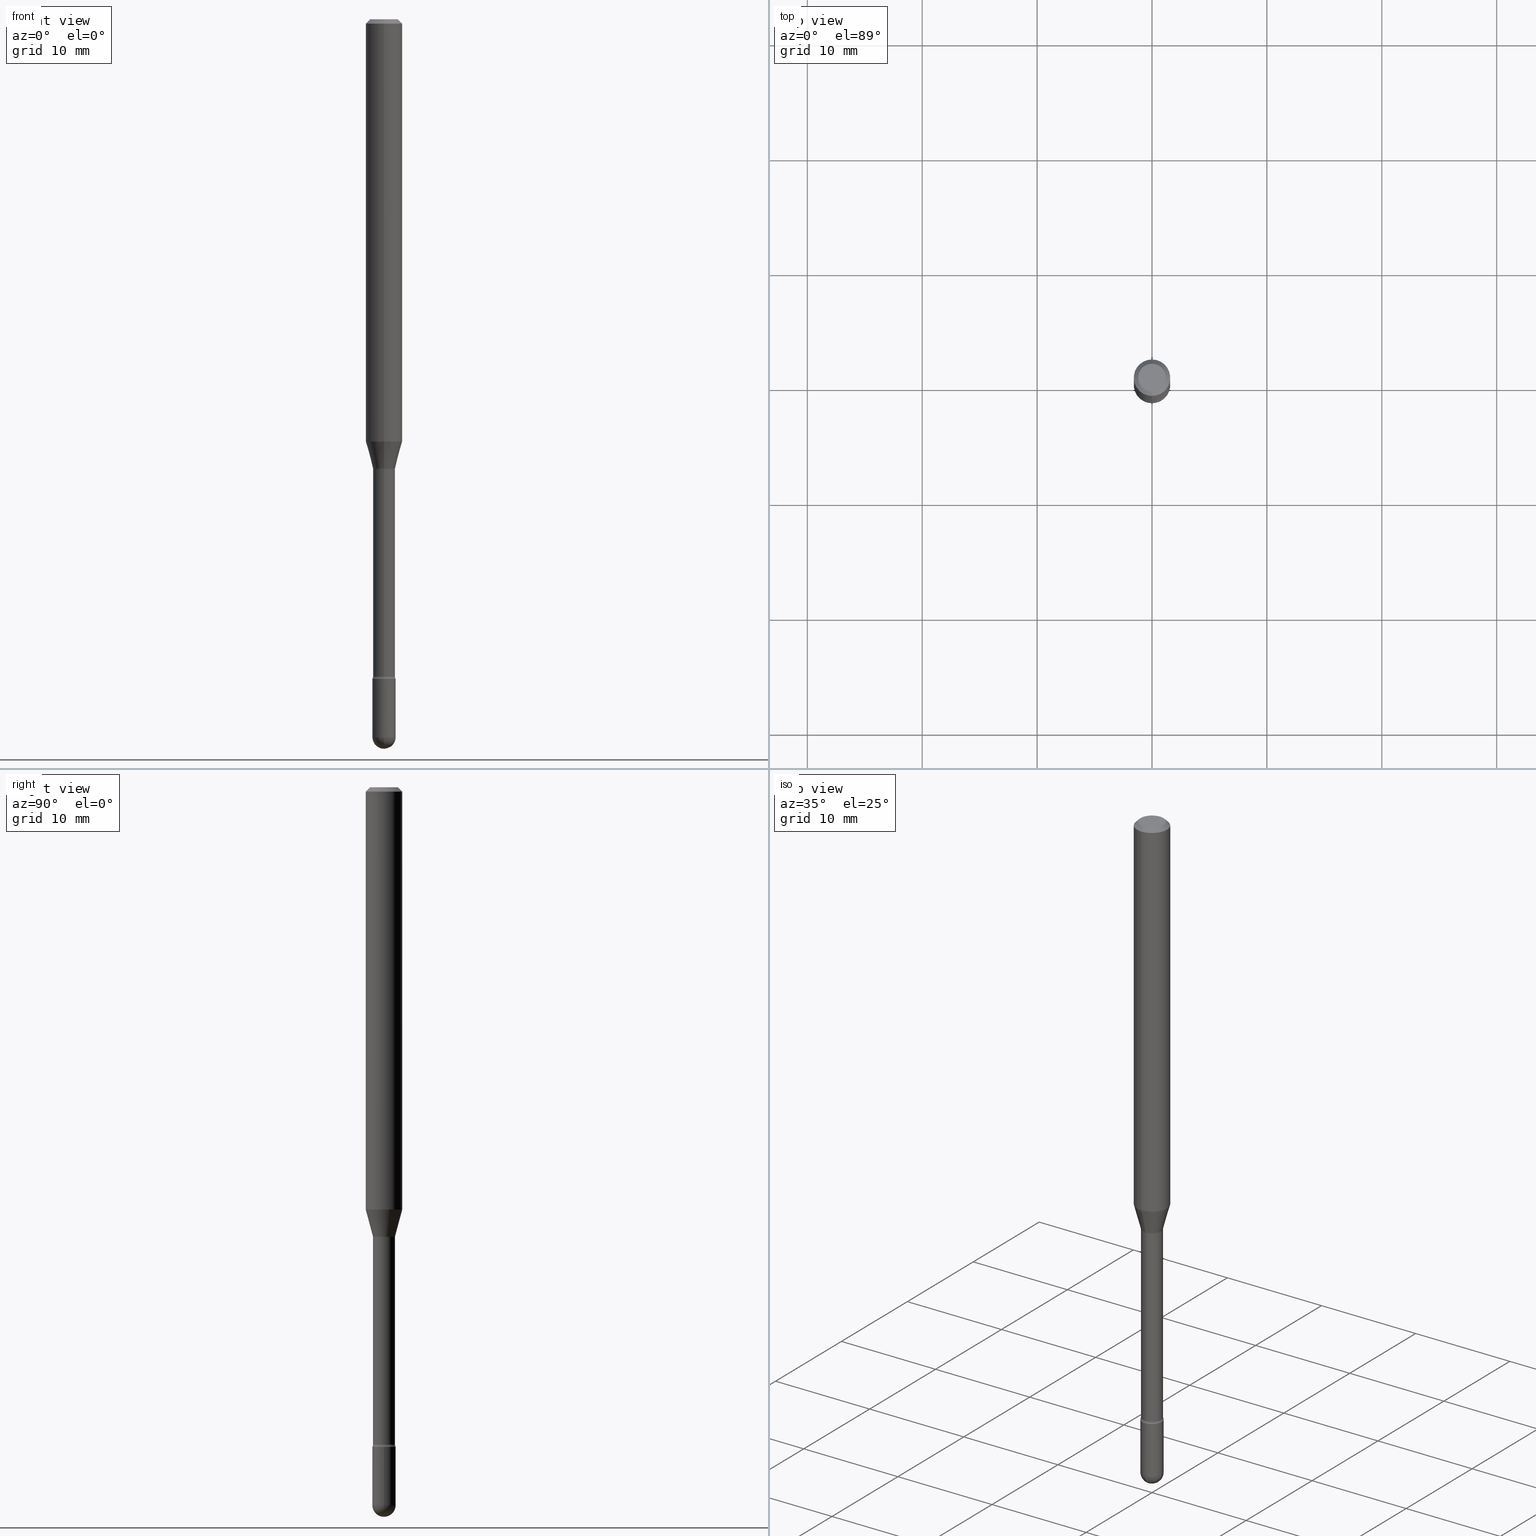
[diagram: canonical four-view strip — front | top / right | iso, engineering-drawing reading convention]
A machine part, canonical four-view strip (front | top / right | iso — engineering-drawing reading convention). The complete STEP part file that produces these views, byte-faithful:
ISO-10303-21;
HEADER;
FILE_DESCRIPTION (( 'STEP AP203' ),
    '1' );
FILE_NAME ('03796.STEP',
    '2024-04-09T20:30:00',
    ( '' ),
    ( '' ),
    'SwSTEP 2.0',
    'SolidWorks 2023',
    '' );
FILE_SCHEMA (( 'CONFIG_CONTROL_DESIGN' ));
ENDSEC;

DATA;
#1 = DIRECTION ( 'NONE',  ( 1.000000000000000000, 0.000000000000000000, 0.000000000000000000 ) ) ;
#2 = CIRCLE ( 'NONE', #558, 0.03760000000000000148 ) ;
#3 = AXIS2_PLACEMENT_3D ( 'NONE', #523, #287, #480 ) ;
#4 = DIRECTION ( 'NONE',  ( 1.000000000000000000, -7.105427357601001070E-15, 4.926315850166376481E-29 ) ) ;
#5 = DATE_AND_TIME ( #492, #222 ) ;
#6 = LINE ( 'NONE', #319, #291 ) ;
#7 = EDGE_CURVE ( 'NONE', #516, #328, #510, .T. ) ;
#8 = CARTESIAN_POINT ( 'NONE',  ( 0.000000000000000000, 0.000000000000000000, 0.000000000000000000 ) ) ;
#9 = DIRECTION ( 'NONE',  ( -2.445449326693585352E-29, 3.491509234583750788E-15, 1.000000000000000000 ) ) ;
#10 = EDGE_CURVE ( 'NONE', #382, #265, #548, .T. ) ;
#11 = ORIENTED_EDGE ( 'NONE', *, *, #185, .F. ) ;
#12 = DIRECTION ( 'NONE',  ( 1.000000000000000000, -6.982962677686265922E-15, 4.883557194083112340E-29 ) ) ;
#13 = AXIS2_PLACEMENT_3D ( 'NONE', #320, #273, #270 ) ;
#14 = DIRECTION ( 'NONE',  ( -2.445449326693585071E-29, 3.491509234583751183E-15, 1.000000000000000000 ) ) ;
#15 = ADVANCED_FACE ( 'NONE', ( #257 ), #55, .T. ) ;
#16 = DIRECTION ( 'NONE',  ( 6.982962677686266711E-15, 1.000000000000000000, 0.000000000000000000 ) ) ;
#17 = DIRECTION ( 'NONE',  ( -2.445468806185136597E-29, 3.491481338843145583E-15, 1.000000000000000000 ) ) ;
#18 = TOROIDAL_SURFACE ( 'NONE', #247, 0.05260000000000008419, 0.01499999999999999424 ) ;
#19 = CIRCLE ( 'NONE', #316, 0.03999999999999999389 ) ;
#20 = CARTESIAN_POINT ( 'NONE',  ( -4.364351673553565651E-16, -0.06250000000000509315, -1.447071934891535072 ) ) ;
#21 = VERTEX_POINT ( 'NONE', #365 ) ;
#22 = ORIENTED_EDGE ( 'NONE', *, *, #277, .T. ) ;
#23 = ORIENTED_EDGE ( 'NONE', *, *, #98, .F. ) ;
#24 = DIRECTION ( 'NONE',  ( -4.851104656540964275E-15, -0.7071067811865500152, -0.7071067811865450192 ) ) ;
#25 = ORIENTED_EDGE ( 'NONE', *, *, #64, .T. ) ;
#26 = EDGE_LOOP ( 'NONE', ( #238, #205 ) ) ;
#27 = CARTESIAN_POINT ( 'NONE',  ( 2.842170943040952512E-16, 0.03999999999999211131, -2.260000000000000675 ) ) ;
#28 = EDGE_LOOP ( 'NONE', ( #77, #112, #194, #513 ) ) ;
#29 = VECTOR ( 'NONE', #9, 39.37007874015748143 ) ;
#30 =( NAMED_UNIT ( * ) PLANE_ANGLE_UNIT ( ) SI_UNIT ( $, .RADIAN. ) );
#31 = ADVANCED_FACE ( 'NONE', ( #332 ), #413, .T. ) ;
#32 = EDGE_CURVE ( 'NONE', #242, #312, #58, .T. ) ;
#33 = AXIS2_PLACEMENT_3D ( 'NONE', #437, #211, #38 ) ;
#34 = CARTESIAN_POINT ( 'NONE',  ( 3.668173990040397856E-31, -5.237263851875655642E-17, -0.01500000000000008271 ) ) ;
#35 = ORIENTED_EDGE ( 'NONE', *, *, #127, .F. ) ;
#36 = DIRECTION ( 'NONE',  ( -6.982962677686265922E-15, -1.000000000000000000, 3.491509234583751183E-15 ) ) ;
#37 = AXIS2_PLACEMENT_3D ( 'NONE', #53, #230, #107 ) ;
#38 = DIRECTION ( 'NONE',  ( 6.982962677686265922E-15, 1.000000000000000000, -3.483106191921935554E-15 ) ) ;
#39 = CALENDAR_DATE ( 2024, 9, 4 ) ;
#40 = CYLINDRICAL_SURFACE ( 'NONE', #81, 0.06250000000000000000 ) ;
#41 = VERTEX_POINT ( 'NONE', #204 ) ;
#42 = DIRECTION ( 'NONE',  ( -2.445449326693585352E-29, 3.491509234583750788E-15, 1.000000000000000000 ) ) ;
#43 = AXIS2_PLACEMENT_3D ( 'NONE', #338, #243, #380 ) ;
#44 = CIRCLE ( 'NONE', #120, 0.03811111260566402148 ) ;
#45 = DIRECTION ( 'NONE',  ( -6.982962677686265922E-15, -1.000000000000000000, 3.491509234583750788E-15 ) ) ;
#46 = ORIENTED_EDGE ( 'NONE', *, *, #213, .F. ) ;
#47 = ADVANCED_FACE ( 'NONE', ( #183 ), #323, .T. ) ;
#48 = DATE_TIME_ROLE ( 'classification_date' ) ;
#49 = DIRECTION ( 'NONE',  ( -2.445449326693585352E-29, 3.491509234583750788E-15, 1.000000000000000000 ) ) ;
#50 = DIRECTION ( 'NONE',  ( -1.000000000000000000, 6.982962677686265922E-15, -4.883557194083112340E-29 ) ) ;
#51 = ADVANCED_FACE ( 'NONE', ( #135 ), #62, .F. ) ;
#52 = DIRECTION ( 'NONE',  ( -2.445449326693585352E-29, 3.491509234583750788E-15, 1.000000000000000000 ) ) ;
#53 = CARTESIAN_POINT ( 'NONE',  ( -1.169113584055446105E-44, 1.669184350826100908E-30, 4.780733988912460139E-16 ) ) ;
#54 = ORIENTED_EDGE ( 'NONE', *, *, #213, .T. ) ;
#55 = CONICAL_SURFACE ( 'NONE', #33, 0.06250000000000000000, 0.7853981633974483900 ) ;
#56 = CARTESIAN_POINT ( 'NONE',  ( 3.761327272888139059E-29, -5.370264173634289939E-15, -1.538092501787273081 ) ) ;
#57 = DIRECTION ( 'NONE',  ( 1.000000000000000000, -6.982962677686265922E-15, 4.876176775795935793E-29 ) ) ;
#58 = LINE ( 'NONE', #236, #537 ) ;
#59 = MANIFOLD_SOLID_BREP ( 'Body-Move/Copy2[2]', #67 ) ;
#60 = CARTESIAN_POINT ( 'NONE',  ( 4.440892098500977205E-16, 0.06249999999999491379, -1.447071934891535516 ) ) ;
#61 = ORIENTED_EDGE ( 'NONE', *, *, #185, .T. ) ;
#62 = TOROIDAL_SURFACE ( 'NONE', #13, 0.05260000000000000092, 0.01499999999999998557 ) ;
#63 = VECTOR ( 'NONE', #121, 39.37007874015748143 ) ;
#64 = EDGE_CURVE ( 'NONE', #516, #395, #450, .T. ) ;
#65 = DIRECTION ( 'NONE',  ( 1.000000000000000000, -7.105427357601001070E-15, 4.926315850166376481E-29 ) ) ;
#66 = ORIENTED_EDGE ( 'NONE', *, *, #258, .T. ) ;
#67 = CLOSED_SHELL ( 'NONE', ( #51, #355, #467, #15, #251, #31, #479, #314, #522, #271, #152, #460, #47, #564 ) ) ;
#68 = ORIENTED_EDGE ( 'NONE', *, *, #109, .T. ) ;
#69 = ORIENTED_EDGE ( 'NONE', *, *, #507, .T. ) ;
#70 = ORIENTED_EDGE ( 'NONE', *, *, #127, .T. ) ;
#71 = EDGE_CURVE ( 'NONE', #265, #382, #419, .T. ) ;
#72 = DIRECTION ( 'NONE',  ( -2.445468806185136597E-29, 3.491481338843145583E-15, 1.000000000000000000 ) ) ;
#73 = APPLICATION_CONTEXT ( 'configuration controlled 3d designs of mechanical parts and assemblies' ) ;
#74 = CIRCLE ( 'NONE', #463, 0.01499999999999998557 ) ;
#75 = CC_DESIGN_APPROVAL ( #429, ( #179 ) ) ;
#76 = CARTESIAN_POINT ( 'NONE',  ( 5.506856330290025342E-29, -7.862331371501561090E-15, -2.251861204020249918 ) ) ;
#77 = ORIENTED_EDGE ( 'NONE', *, *, #7, .T. ) ;
#78 = CARTESIAN_POINT ( 'NONE',  ( 6.015853263215436432E-29, -8.589044093554138346E-15, -2.459999999999999964 ) ) ;
#79 = APPROVAL_STATUS ( 'not_yet_approved' ) ;
#80 = DIRECTION ( 'NONE',  ( -2.445449326693585071E-29, 3.491509234583751183E-15, 1.000000000000000000 ) ) ;
#81 = AXIS2_PLACEMENT_3D ( 'NONE', #214, #397, #45 ) ;
#82 = VECTOR ( 'NONE', #369, 39.37007874015748854 ) ;
#83 = COORDINATED_UNIVERSAL_TIME_OFFSET ( 5, 0, .BEHIND. ) ;
#84 = FACE_OUTER_BOUND ( 'NONE', #336, .T. ) ;
#85 = EDGE_LOOP ( 'NONE', ( #191, #427, #209, #517, #244 ) ) ;
#86 = VERTEX_POINT ( 'NONE', #195 ) ;
#87 = SHAPE_DEFINITION_REPRESENTATION ( #362, #530 ) ;
#88 = CARTESIAN_POINT ( 'NONE',  ( -2.625593966810039482E-16, -0.03760000000000005005, 6.093541461115952163E-16 ) ) ;
#89 = ORIENTED_EDGE ( 'NONE', *, *, #307, .F. ) ;
#90 = APPROVAL_STATUS ( 'not_yet_approved' ) ;
#91 = EDGE_CURVE ( 'NONE', #328, #379, #286, .T. ) ;
#92 = DIRECTION ( 'NONE',  ( -2.445449326693585071E-29, 3.491509234583750788E-15, 1.000000000000000000 ) ) ;
#93 = EDGE_LOOP ( 'NONE', ( #165, #471 ) ) ;
#94 = DATE_TIME_ROLE ( 'creation_date' ) ;
#95 = AXIS2_PLACEMENT_3D ( 'NONE', #303, #164, #565 ) ;
#96 = DIRECTION ( 'NONE',  ( -6.982962677686265922E-15, -1.000000000000000000, 0.000000000000000000 ) ) ;
#97 = CARTESIAN_POINT ( 'NONE',  ( 6.015853263215436432E-29, -8.589044093554138346E-15, -2.459999999999999964 ) ) ;
#98 = EDGE_CURVE ( 'NONE', #290, #21, #333, .T. ) ;
#99 = UNCERTAINTY_MEASURE_WITH_UNIT (LENGTH_MEASURE( 1.000000000000000082E-05 ), #470, 'distance_accuracy_value', 'NONE');
#100 = DIRECTION ( 'NONE',  ( -6.982962677686265922E-15, -1.000000000000000000, 3.491509234583749999E-15 ) ) ;
#101 = CYLINDRICAL_SURFACE ( 'NONE', #436, 0.03760000000000005005 ) ;
#102 = ORIENTED_EDGE ( 'NONE', *, *, #32, .F. ) ;
#103 = AXIS2_PLACEMENT_3D ( 'NONE', #264, #223, #404 ) ;
#104 = CIRCLE ( 'NONE', #171, 0.06250000000000000000 ) ;
#105 = CARTESIAN_POINT ( 'NONE',  ( 3.574424759935166620E-16, 0.03811111260565865078, -1.538092501787273081 ) ) ;
#106 = ORIENTED_EDGE ( 'NONE', *, *, #384, .F. ) ;
#107 = DIRECTION ( 'NONE',  ( -6.982962677686265922E-15, -1.000000000000000000, 3.491509234583750788E-15 ) ) ;
#108 = ORIENTED_EDGE ( 'NONE', *, *, #322, .T. ) ;
#109 = EDGE_CURVE ( 'NONE', #139, #252, #533, .T. ) ;
#110 = EDGE_CURVE ( 'NONE', #139, #41, #371, .T. ) ;
#111 = DIRECTION ( 'NONE',  ( -1.000000000000000000, 6.982962677686265922E-15, -4.883557194083112340E-29 ) ) ;
#112 = ORIENTED_EDGE ( 'NONE', *, *, #91, .T. ) ;
#113 = DIRECTION ( 'NONE',  ( -2.445449326693585071E-29, 3.491509234583751183E-15, 1.000000000000000000 ) ) ;
#114 = ORIENTED_EDGE ( 'NONE', *, *, #298, .T. ) ;
#115 = EDGE_CURVE ( 'NONE', #252, #550, #2, .T. ) ;
#116 = DIRECTION ( 'NONE',  ( 1.000000000000000000, -6.982962677686260400E-15, 0.000000000000000000 ) ) ;
#117 = ORIENTED_EDGE ( 'NONE', *, *, #169, .F. ) ;
#118 = DIRECTION ( 'NONE',  ( -6.982962677686265133E-15, -1.000000000000000000, 0.000000000000000000 ) ) ;
#119 = CIRCLE ( 'NONE', #506, 0.04000000000000000083 ) ;
#120 = AXIS2_PLACEMENT_3D ( 'NONE', #269, #490, #446 ) ;
#121 = DIRECTION ( 'NONE',  ( -2.445468806185136877E-29, 3.491481338843145188E-15, 1.000000000000000000 ) ) ;
#122 = DIRECTION ( 'NONE',  ( -6.982962677686266711E-15, -1.000000000000000000, 3.491509234583751183E-15 ) ) ;
#123 = DIRECTION ( 'NONE',  ( -2.445468806185136597E-29, 3.491481338843145583E-15, 1.000000000000000000 ) ) ;
#124 = CIRCLE ( 'NONE', #208, 0.01499999999999998557 ) ;
#125 = COORDINATED_UNIVERSAL_TIME_OFFSET ( 5, 0, .BEHIND. ) ;
#126 = DIRECTION ( 'NONE',  ( -2.445449326693585071E-29, 3.491509234583751183E-15, 1.000000000000000000 ) ) ;
#127 = EDGE_CURVE ( 'NONE', #379, #290, #347, .T. ) ;
#128 = PERSON_AND_ORGANIZATION_ROLE ( 'classification_officer' ) ;
#129 = DIRECTION ( 'NONE',  ( -6.982962677686265922E-15, -1.000000000000000000, 4.370956789862821150E-15 ) ) ;
#130 = DIRECTION ( 'NONE',  ( 0.000000000000000000, 0.000000000000000000, 1.000000000000000000 ) ) ;
#131 = DIRECTION ( 'NONE',  ( -2.445449326693585071E-29, 3.491509234583751183E-15, 1.000000000000000000 ) ) ;
#132 = AXIS2_PLACEMENT_3D ( 'NONE', #173, #500, #129 ) ;
#133 = VECTOR ( 'NONE', #24, 39.37007874015748143 ) ;
#134 = DIRECTION ( 'NONE',  ( -6.982962677686265922E-15, -1.000000000000000000, 3.491509234583750788E-15 ) ) ;
#135 = FACE_OUTER_BOUND ( 'NONE', #488, .T. ) ;
#136 = APPROVAL ( #90, 'UNSPECIFIED' ) ;
#137 = DIRECTION ( 'NONE',  ( 7.105427357601001859E-15, 1.000000000000000000, 0.000000000000000000 ) ) ;
#138 = DIRECTION ( 'NONE',  ( -1.000000000000000000, 6.982962677686265922E-15, -4.883557194083112340E-29 ) ) ;
#139 = VERTEX_POINT ( 'NONE', #486 ) ;
#140 = PRODUCT ( '03796', '03796', '', ( #403 ) ) ;
#141 = CARTESIAN_POINT ( 'NONE',  ( -0.03999999999999999389, -7.955678865365783106E-15, -2.459999999999999964 ) ) ;
#142 = CIRCLE ( 'NONE', #514, 0.04000000000000004940 ) ;
#143 = PRODUCT_DEFINITION_FORMATION_WITH_SPECIFIED_SOURCE ( 'ANY', '', #140, .NOT_KNOWN. ) ;
#144 = EDGE_CURVE ( 'NONE', #299, #487, #189, .T. ) ;
#145 = FACE_OUTER_BOUND ( 'NONE', #207, .T. ) ;
#146 = ORIENTED_EDGE ( 'NONE', *, *, #375, .T. ) ;
#147 = CARTESIAN_POINT ( 'NONE',  ( 5.526715478327502384E-29, -7.890810870159278083E-15, -2.260000000000000231 ) ) ;
#148 = VERTEX_POINT ( 'NONE', #497 ) ;
#149 = FACE_OUTER_BOUND ( 'NONE', #443, .T. ) ;
#150 = EDGE_LOOP ( 'NONE', ( #528, #504, #509, #424 ) ) ;
#151 = AXIS2_PLACEMENT_3D ( 'NONE', #544, #309, #174 ) ;
#152 = ADVANCED_FACE ( 'NONE', ( #167 ), #226, .F. ) ;
#153 = EDGE_LOOP ( 'NONE', ( #305, #22, #348, #117 ) ) ;
#154 = CC_DESIGN_APPROVAL ( #302, ( #143 ) ) ;
#155 = CARTESIAN_POINT ( 'NONE',  ( 4.364351673553919652E-16, 0.06249999999999995143, -0.01500000000000030129 ) ) ;
#156 = ORIENTED_EDGE ( 'NONE', *, *, #169, .T. ) ;
#157 = FACE_OUTER_BOUND ( 'NONE', #472, .T. ) ;
#158 = DIMENSIONAL_EXPONENTS ( 1.000000000000000000, 0.000000000000000000, 0.000000000000000000, 0.000000000000000000, 0.000000000000000000, 0.000000000000000000, 0.000000000000000000 ) ;
#159 = TOROIDAL_SURFACE ( 'NONE', #351, 0.05260000000000000092, 0.01499999999999998557 ) ;
#160 = CIRCLE ( 'NONE', #409, 0.01499999999999999424 ) ;
#161 = CONICAL_SURFACE ( 'NONE', #3, 0.03811111260566402148, 0.2617993877991499629 ) ;
#162 = CARTESIAN_POINT ( 'NONE',  ( -2.661284769304128200E-16, -0.03811111260566939218, -1.538092501787273081 ) ) ;
#163 = CARTESIAN_POINT ( 'NONE',  ( 2.023411209015643713E-45, -2.889207364075175984E-31, -8.274570702386655523E-17 ) ) ;
#164 = DIRECTION ( 'NONE',  ( -1.000000000000000000, 6.982962677686265922E-15, -4.883557194083112340E-29 ) ) ;
#165 = ORIENTED_EDGE ( 'NONE', *, *, #192, .F. ) ;
#166 = APPROVAL_ROLE ( '' ) ;
#167 = FACE_OUTER_BOUND ( 'NONE', #93, .T. ) ;
#168 = EDGE_LOOP ( 'NONE', ( #35, #54, #282, #23 ) ) ;
#169 = EDGE_CURVE ( 'NONE', #139, #466, #410, .T. ) ;
#170 = AXIS2_PLACEMENT_3D ( 'NONE', #411, #464, #274 ) ;
#171 = AXIS2_PLACEMENT_3D ( 'NONE', #34, #431, #435 ) ;
#172 = COORDINATED_UNIVERSAL_TIME_OFFSET ( 5, 0, .BEHIND. ) ;
#173 = CARTESIAN_POINT ( 'NONE',  ( 3.538741088857687893E-29, -5.052465023780772029E-15, -1.447071934891535294 ) ) ;
#174 = DIRECTION ( 'NONE',  ( -6.982962677686266711E-15, -1.000000000000000000, 3.491509234583751183E-15 ) ) ;
#175 = PERSON_AND_ORGANIZATION ( #295, #220 ) ;
#176 = CARTESIAN_POINT ( 'NONE',  ( -3.773273898774340269E-16, -0.04749999999999999362, 8.310098161886161461E-17 ) ) ;
#177 = APPROVAL_DATE_TIME ( #405, #136 ) ;
#178 = DIRECTION ( 'NONE',  ( -6.982962677686265133E-15, -1.000000000000000000, 0.000000000000000000 ) ) ;
#179 = PRODUCT_DEFINITION ( 'UNKNOWN', '', #143, #491 ) ;
#180 = AXIS2_PLACEMENT_3D ( 'NONE', #502, #276, #455 ) ;
#181 = DIRECTION ( 'NONE',  ( -6.982962677686265922E-15, -1.000000000000000000, 4.370956789862821150E-15 ) ) ;
#182 = FACE_OUTER_BOUND ( 'NONE', #85, .T. ) ;
#183 = FACE_OUTER_BOUND ( 'NONE', #188, .T. ) ;
#184 = CARTESIAN_POINT ( 'NONE',  ( 6.015853263215436432E-29, -8.589044093554138346E-15, -2.459999999999999964 ) ) ;
#185 = EDGE_CURVE ( 'NONE', #328, #516, #44, .T. ) ;
#186 = LOCAL_TIME ( 16, 30, 0.000000000000000000, #83 ) ;
#187 = CARTESIAN_POINT ( 'NONE',  ( -3.673038368462598469E-16, -0.05260000000000538550, -1.541974787463810781 ) ) ;
#188 = EDGE_LOOP ( 'NONE', ( #198, #392, #68, #106 ) ) ;
#189 = CIRCLE ( 'NONE', #326, 0.04000000000000004940 ) ;
#190 = CARTESIAN_POINT ( 'NONE',  ( 0.000000000000000000, 0.000000000000000000, 0.000000000000000000 ) ) ;
#191 = ORIENTED_EDGE ( 'NONE', *, *, #507, .F. ) ;
#192 = EDGE_CURVE ( 'NONE', #466, #457, #473, .T. ) ;
#193 = LINE ( 'NONE', #203, #63 ) ;
#194 = ORIENTED_EDGE ( 'NONE', *, *, #298, .F. ) ;
#195 = CARTESIAN_POINT ( 'NONE',  ( 2.793185071075109275E-16, 0.03999999999999143130, -2.460000000000000409 ) ) ;
#196 = ORIENTED_EDGE ( 'NONE', *, *, #258, .F. ) ;
#197 = CARTESIAN_POINT ( 'NONE',  ( 5.526759501978408888E-29, -7.890747825785510097E-15, -2.260000000000000231 ) ) ;
#198 = ORIENTED_EDGE ( 'NONE', *, *, #375, .F. ) ;
#199 = AXIS2_PLACEMENT_3D ( 'NONE', #461, #14, #237 ) ;
#200 = TOROIDAL_SURFACE ( 'NONE', #485, 0.05260000000000008419, 0.01499999999999999424 ) ;
#201 = DIRECTION ( 'NONE',  ( -2.445468806185136877E-29, 3.491481338843145188E-15, 1.000000000000000000 ) ) ;
#202 = ADVANCED_FACE ( 'NONE', ( #84 ), #442, .T. ) ;
#203 = CARTESIAN_POINT ( 'NONE',  ( -0.04000000000000000083, 2.842170943040400803E-16, -1.967574036101962509E-30 ) ) ;
#204 = CARTESIAN_POINT ( 'NONE',  ( 2.756905814749742978E-16, 0.03759999999999222992, -2.251861204020249918 ) ) ;
#205 = ORIENTED_EDGE ( 'NONE', *, *, #71, .T. ) ;
#206 = EDGE_CURVE ( 'NONE', #395, #21, #6, .T. ) ;
#207 = EDGE_LOOP ( 'NONE', ( #334, #481 ) ) ;
#208 = AXIS2_PLACEMENT_3D ( 'NONE', #187, #138, #456 ) ;
#209 = ORIENTED_EDGE ( 'NONE', *, *, #363, .T. ) ;
#210 = CALENDAR_DATE ( 2024, 9, 4 ) ;
#211 = DIRECTION ( 'NONE',  ( 2.445449326693585071E-29, -3.491509234583751183E-15, -1.000000000000000000 ) ) ;
#212 = DATE_AND_TIME ( #39, #186 ) ;
#213 = EDGE_CURVE ( 'NONE', #379, #395, #267, .T. ) ;
#214 = CARTESIAN_POINT ( 'NONE',  ( -1.169113584055446105E-44, 1.669184350826100908E-30, 4.780733988912460139E-16 ) ) ;
#215 = ORIENTED_EDGE ( 'NONE', *, *, #322, .F. ) ;
#216 = PRODUCT_RELATED_PRODUCT_CATEGORY ( 'detail', '', ( #140 ) ) ;
#217 = ORIENTED_EDGE ( 'NONE', *, *, #192, .T. ) ;
#218 = CALENDAR_DATE ( 2024, 9, 4 ) ;
#219 = CARTESIAN_POINT ( 'NONE',  ( 6.015853263215436432E-29, -8.589044093554138346E-15, -2.459999999999999964 ) ) ;
#220 = ORGANIZATION ( 'UNSPECIFIED', 'UNSPECIFIED', '' ) ;
#221 = VECTOR ( 'NONE', #49, 39.37007874015748143 ) ;
#222 = LOCAL_TIME ( 16, 30, 0.000000000000000000, #125 ) ;
#223 = DIRECTION ( 'NONE',  ( 2.445449326693585071E-29, -3.491509234583750788E-15, -1.000000000000000000 ) ) ;
#224 = AXIS2_PLACEMENT_3D ( 'NONE', #482, #80, #562 ) ;
#225 = COORDINATED_UNIVERSAL_TIME_OFFSET ( 5, 0, .BEHIND. ) ;
#226 = PLANE ( 'NONE',  #545 ) ;
#227 = CARTESIAN_POINT ( 'NONE',  ( 3.770821205781859138E-29, -5.383819209925211382E-15, -1.541974787463810781 ) ) ;
#228 = AXIS2_PLACEMENT_3D ( 'NONE', #184, #366, #542 ) ;
#229 = FACE_OUTER_BOUND ( 'NONE', #477, .T. ) ;
#230 = DIRECTION ( 'NONE',  ( -2.445449326693585071E-29, 3.491509234583751183E-15, 1.000000000000000000 ) ) ;
#231 = EDGE_CURVE ( 'NONE', #86, #374, #19, .T. ) ;
#232 = DIRECTION ( 'NONE',  ( -2.445449326693585071E-29, 3.491509234583751183E-15, 1.000000000000000000 ) ) ;
#233 = DIRECTION ( 'NONE',  ( -2.438088387897960049E-29, 3.491481338843145188E-15, 1.000000000000000000 ) ) ;
#234 = ORIENTED_EDGE ( 'NONE', *, *, #556, .F. ) ;
#235 = DIRECTION ( 'NONE',  ( -1.807323732225328167E-15, -0.2588190451025179084, 0.9659258262890690894 ) ) ;
#236 = CARTESIAN_POINT ( 'NONE',  ( 0.04000000000000000083, -2.793185071074506290E-16, 1.950470710318374387E-30 ) ) ;
#237 = DIRECTION ( 'NONE',  ( -6.982962677686265922E-15, -1.000000000000000000, 0.000000000000000000 ) ) ;
#238 = ORIENTED_EDGE ( 'NONE', *, *, #10, .T. ) ;
#239 = VECTOR ( 'NONE', #235, 39.37007874015748143 ) ;
#240 = LOCAL_TIME ( 16, 30, 0.000000000000000000, #346 ) ;
#241 = DIRECTION ( 'NONE',  ( 4.937700262164548042E-15, 0.7071067811865451302, -0.7071067811865499042 ) ) ;
#242 = VERTEX_POINT ( 'NONE', #439 ) ;
#243 = DIRECTION ( 'NONE',  ( -2.445468806185136597E-29, 3.491481338843145583E-15, 1.000000000000000000 ) ) ;
#244 = ORIENTED_EDGE ( 'NONE', *, *, #529, .F. ) ;
#245 = EDGE_LOOP ( 'NONE', ( #422, #475, #156, #217 ) ) ;
#246 = DIRECTION ( 'NONE',  ( -2.445449326693585071E-29, 3.491509234583751183E-15, 1.000000000000000000 ) ) ;
#247 = AXIS2_PLACEMENT_3D ( 'NONE', #557, #113, #296 ) ;
#248 = CARTESIAN_POINT ( 'NONE',  ( 5.506812465178726754E-29, -7.862394188837587013E-15, -2.251861204020249918 ) ) ;
#249 = ORIENTED_EDGE ( 'NONE', *, *, #91, .F. ) ;
#250 = MANIFOLD_SOLID_BREP ( 'Body-Move/Copy2[1]', #394 ) ;
#251 = ADVANCED_FACE ( 'NONE', ( #356 ), #40, .T. ) ;
#252 = VERTEX_POINT ( 'NONE', #566 ) ;
#253 = CARTESIAN_POINT ( 'NONE',  ( 2.671640686458530486E-16, 0.03759999999999462383, -1.541974787463810781 ) ) ;
#254 = ORIENTED_EDGE ( 'NONE', *, *, #425, .T. ) ;
#255 = DATE_AND_TIME ( #210, #240 ) ;
#256 = CIRCLE ( 'NONE', #228, 0.03999999999999999389 ) ;
#257 = FACE_OUTER_BOUND ( 'NONE', #260, .T. ) ;
#258 = EDGE_CURVE ( 'NONE', #328, #550, #74, .T. ) ;
#259 = CARTESIAN_POINT ( 'NONE',  ( 6.015853263215436432E-29, -8.589044093554138346E-15, -2.459999999999999964 ) ) ;
#260 = EDGE_LOOP ( 'NONE', ( #285, #254, #263, #415 ) ) ;
#261 = CC_DESIGN_DATE_AND_TIME_ASSIGNMENT ( #5, #94, ( #179 ) ) ;
#262 = APPROVAL_ROLE ( '' ) ;
#263 = ORIENTED_EDGE ( 'NONE', *, *, #556, .T. ) ;
#264 = CARTESIAN_POINT ( 'NONE',  ( 3.316907271900976096E-16, 0.04749999999999999362, 3.181715729096152869E-17 ) ) ;
#265 = VERTEX_POINT ( 'NONE', #176 ) ;
#266 = APPROVAL_PERSON_ORGANIZATION ( #396, #136, #262 ) ;
#267 = CIRCLE ( 'NONE', #132, 0.06250000000000000000 ) ;
#268 = APPROVAL_STATUS ( 'not_yet_approved' ) ;
#269 = CARTESIAN_POINT ( 'NONE',  ( 3.761327272888139059E-29, -5.370264173634289939E-15, -1.538092501787273081 ) ) ;
#270 = DIRECTION ( 'NONE',  ( -6.982962677686265922E-15, -1.000000000000000000, 3.491509234583751183E-15 ) ) ;
#271 = ADVANCED_FACE ( 'NONE', ( #311 ), #494, .F. ) ;
#272 = DIRECTION ( 'NONE',  ( 1.000000000000000000, -6.982962677686260400E-15, 0.000000000000000000 ) ) ;
#273 = DIRECTION ( 'NONE',  ( -2.445449326693585071E-29, 3.491509234583751183E-15, 1.000000000000000000 ) ) ;
#274 = DIRECTION ( 'NONE',  ( 1.000000000000000000, -6.982962677686260400E-15, 0.000000000000000000 ) ) ;
#275 = AXIS2_PLACEMENT_3D ( 'NONE', #387, #416, #358 ) ;
#276 = DIRECTION ( 'NONE',  ( -2.445449326693585071E-29, 3.491509234583751183E-15, 1.000000000000000000 ) ) ;
#277 = EDGE_CURVE ( 'NONE', #41, #457, #160, .T. ) ;
#278 = SPHERICAL_SURFACE ( 'NONE', #498, 0.04000000000000004940 ) ;
#279 = CYLINDRICAL_SURFACE ( 'NONE', #454, 0.04000000000000000083 ) ;
#280 = CARTESIAN_POINT ( 'NONE',  ( 3.840629472727447874E-16, 0.04749999999999999362, -2.485923956665947374E-16 ) ) ;
#281 = CIRCLE ( 'NONE', #521, 0.06250000000000000000 ) ;
#282 = ORIENTED_EDGE ( 'NONE', *, *, #206, .T. ) ;
#283 = CARTESIAN_POINT ( 'NONE',  ( 3.770851242666705328E-29, -5.383776195396521708E-15, -1.541974787463811003 ) ) ;
#284 = EDGE_LOOP ( 'NONE', ( #331, #146, #386, #561 ) ) ;
#285 = ORIENTED_EDGE ( 'NONE', *, *, #71, .F. ) ;
#286 = LINE ( 'NONE', #359, #82 ) ;
#287 = DIRECTION ( 'NONE',  ( -2.445449326693585071E-29, 3.491509234583751183E-15, 1.000000000000000000 ) ) ;
#288 = ADVANCED_FACE ( 'NONE', ( #511 ), #278, .T. ) ;
#289 = FACE_OUTER_BOUND ( 'NONE', #245, .T. ) ;
#290 = VERTEX_POINT ( 'NONE', #458 ) ;
#291 = VECTOR ( 'NONE', #42, 39.37007874015748143 ) ;
#292 = CC_DESIGN_SECURITY_CLASSIFICATION ( #546, ( #143 ) ) ;
#293 = EDGE_CURVE ( 'NONE', #516, #252, #124, .T. ) ;
#294 = CARTESIAN_POINT ( 'NONE',  ( 3.668173990040397856E-31, -5.237263851875655642E-17, -0.01500000000000008271 ) ) ;
#295 = PERSON ( 'UNSPECIFIED', 'UNSPECIFIED', 'UNSPECIFIED', ('UNSPECIFIED'), ('UNSPECIFIED'), ('UNSPECIFIED') ) ;
#296 = DIRECTION ( 'NONE',  ( -6.982962677686265922E-15, -1.000000000000000000, 3.491509234583751183E-15 ) ) ;
#297 = ORIENTED_EDGE ( 'NONE', *, *, #307, .T. ) ;
#298 = EDGE_CURVE ( 'NONE', #395, #379, #281, .T. ) ;
#299 = VERTEX_POINT ( 'NONE', #361 ) ;
#300 = CC_DESIGN_PERSON_AND_ORGANIZATION_ASSIGNMENT ( #393, #440, ( #143 ) ) ;
#301 = APPLICATION_PROTOCOL_DEFINITION ( 'international standard', 'config_control_design', 1994, #73 ) ;
#302 = APPROVAL ( #268, 'UNSPECIFIED' ) ;
#303 = CARTESIAN_POINT ( 'NONE',  ( -3.673038368462430836E-16, -0.05260000000000794596, -2.251861204020249918 ) ) ;
#304 = VECTOR ( 'NONE', #52, 39.37007874015748143 ) ;
#305 = ORIENTED_EDGE ( 'NONE', *, *, #441, .F. ) ;
#306 = PERSON_AND_ORGANIZATION ( #295, #220 ) ;
#307 = EDGE_CURVE ( 'NONE', #242, #86, #430, .T. ) ;
#308 = CARTESIAN_POINT ( 'NONE',  ( 4.440892098500625669E-16, 0.06250000000000000000, 2.598540717297616143E-16 ) ) ;
#309 = DIRECTION ( 'NONE',  ( -2.445449326693585071E-29, 3.491509234583751183E-15, 1.000000000000000000 ) ) ;
#310 = PERSON_AND_ORGANIZATION ( #295, #220 ) ;
#311 = FACE_OUTER_BOUND ( 'NONE', #26, .T. ) ;
#312 = VERTEX_POINT ( 'NONE', #321 ) ;
#313 = PERSON_AND_ORGANIZATION_ROLE ( 'design_owner' ) ;
#314 = ADVANCED_FACE ( 'NONE', ( #407 ), #503, .T. ) ;
#315 = DIRECTION ( 'NONE',  ( -1.000000000000000000, 7.105427357601001070E-15, -4.926315508542082329E-29 ) ) ;
#316 = AXIS2_PLACEMENT_3D ( 'NONE', #97, #123, #272 ) ;
#317 =( GEOMETRIC_REPRESENTATION_CONTEXT ( 3 ) GLOBAL_UNCERTAINTY_ASSIGNED_CONTEXT ( ( #99 ) ) GLOBAL_UNIT_ASSIGNED_CONTEXT ( ( #470, #30, #444 ) ) REPRESENTATION_CONTEXT ( 'NONE', 'WORKASPACE' ) );
#318 = SECURITY_CLASSIFICATION_LEVEL ( 'unclassified' ) ;
#319 = CARTESIAN_POINT ( 'NONE',  ( -4.364351673553916201E-16, -0.06250000000000000000, 6.962927260527304628E-16 ) ) ;
#320 = CARTESIAN_POINT ( 'NONE',  ( 3.770851242666705328E-29, -5.383776195396521708E-15, -1.541974787463811003 ) ) ;
#321 = CARTESIAN_POINT ( 'NONE',  ( 0.04000000000000000083, -8.170066332892960135E-15, -2.260000000000000231 ) ) ;
#322 = EDGE_CURVE ( 'NONE', #299, #86, #142, .T. ) ;
#323 = CYLINDRICAL_SURFACE ( 'NONE', #180, 0.03760000000000005005 ) ;
#324 = CARTESIAN_POINT ( 'NONE',  ( 3.538741088857687893E-29, -5.052465023780772029E-15, -1.447071934891535294 ) ) ;
#325 = ORIENTED_EDGE ( 'NONE', *, *, #144, .F. ) ;
#326 = AXIS2_PLACEMENT_3D ( 'NONE', #219, #315, #451 ) ;
#327 = LINE ( 'NONE', #508, #304 ) ;
#328 = VERTEX_POINT ( 'NONE', #105 ) ;
#329 = PLANE ( 'NONE',  #484 ) ;
#330 = DIRECTION ( 'NONE',  ( -2.445449326693585071E-29, 3.491509234583751183E-15, 1.000000000000000000 ) ) ;
#331 = ORIENTED_EDGE ( 'NONE', *, *, #110, .T. ) ;
#332 = FACE_OUTER_BOUND ( 'NONE', #28, .T. ) ;
#333 = CIRCLE ( 'NONE', #275, 0.06250000000000000000 ) ;
#334 = ORIENTED_EDGE ( 'NONE', *, *, #541, .T. ) ;
#335 = FACE_OUTER_BOUND ( 'NONE', #150, .T. ) ;
#336 = EDGE_LOOP ( 'NONE', ( #215, #459, #543, #447 ) ) ;
#337 = ADVANCED_FACE ( 'NONE', ( #145 ), #329, .T. ) ;
#338 = CARTESIAN_POINT ( 'NONE',  ( 5.526759501978408888E-29, -7.890747825785510097E-15, -2.260000000000000231 ) ) ;
#339 = ORIENTED_EDGE ( 'NONE', *, *, #7, .F. ) ;
#340 = LOCAL_TIME ( 16, 30, 0.000000000000000000, #172 ) ;
#341 = DIRECTION ( 'NONE',  ( -6.982962677686265922E-15, -1.000000000000000000, 6.829619984160658243E-15 ) ) ;
#342 = AXIS2_PLACEMENT_3D ( 'NONE', #527, #131, #349 ) ;
#343 = VECTOR ( 'NONE', #241, 39.37007874015748143 ) ;
#344 = FACE_OUTER_BOUND ( 'NONE', #153, .T. ) ;
#345 = ORIENTED_EDGE ( 'NONE', *, *, #206, .F. ) ;
#346 = COORDINATED_UNIVERSAL_TIME_OFFSET ( 5, 0, .BEHIND. ) ;
#347 = LINE ( 'NONE', #308, #221 ) ;
#348 = ORIENTED_EDGE ( 'NONE', *, *, #418, .T. ) ;
#349 = DIRECTION ( 'NONE',  ( -6.982962677686265922E-15, -1.000000000000000000, 6.829619984160658243E-15 ) ) ;
#350 = AXIS2_PLACEMENT_3D ( 'NONE', #532, #449, #178 ) ;
#351 = AXIS2_PLACEMENT_3D ( 'NONE', #283, #246, #389 ) ;
#352 = CALENDAR_DATE ( 2024, 9, 4 ) ;
#353 = DIRECTION ( 'NONE',  ( 7.105427357601001859E-15, 1.000000000000000000, 0.000000000000000000 ) ) ;
#354 = CARTESIAN_POINT ( 'NONE',  ( -2.661284769304128200E-16, -0.03811111260566939218, -1.538092501787273081 ) ) ;
#355 = ADVANCED_FACE ( 'NONE', ( #501 ), #101, .T. ) ;
#356 = FACE_OUTER_BOUND ( 'NONE', #465, .T. ) ;
#357 = PERSON_AND_ORGANIZATION_ROLE ( 'design_supplier' ) ;
#358 = DIRECTION ( 'NONE',  ( -6.982962677686265922E-15, -1.000000000000000000, 3.483106191921935554E-15 ) ) ;
#359 = CARTESIAN_POINT ( 'NONE',  ( 2.707957421369351104E-16, 0.03811111260565865078, -1.538092501787273081 ) ) ;
#360 = AXIS2_PLACEMENT_3D ( 'NONE', #56, #232, #370 ) ;
#361 = CARTESIAN_POINT ( 'NONE',  ( 6.115382348041200269E-29, -8.726254053509568220E-15, -2.500000000000000000 ) ) ;
#362 = PRODUCT_DEFINITION_SHAPE ( 'NONE', 'NONE',  #179 ) ;
#363 = EDGE_CURVE ( 'NONE', #487, #242, #256, .T. ) ;
#364 = CYLINDRICAL_SURFACE ( 'NONE', #400, 0.04000000000000000083 ) ;
#365 = CARTESIAN_POINT ( 'NONE',  ( -4.364351673553912750E-16, -0.06250000000000005551, -0.01499999999999986587 ) ) ;
#366 = DIRECTION ( 'NONE',  ( -2.445468806185136597E-29, 3.491481338843145583E-15, 1.000000000000000000 ) ) ;
#367 = ORIENTED_EDGE ( 'NONE', *, *, #293, .F. ) ;
#368 = CIRCLE ( 'NONE', #43, 0.04000000000000000083 ) ;
#369 = DIRECTION ( 'NONE',  ( 1.839019923739597949E-15, 0.2588190451025246253, 0.9659258262890670910 ) ) ;
#370 = DIRECTION ( 'NONE',  ( -6.982962677686265922E-15, -1.000000000000000000, 0.000000000000000000 ) ) ;
#371 = CIRCLE ( 'NONE', #350, 0.03760000000000009168 ) ;
#372 = CIRCLE ( 'NONE', #417, 0.03999999999999999389 ) ;
#373 = DIRECTION ( 'NONE',  ( 1.000000000000000000, -6.982962677686265922E-15, 4.876176775795935793E-29 ) ) ;
#374 = VERTEX_POINT ( 'NONE', #141 ) ;
#375 = EDGE_CURVE ( 'NONE', #41, #550, #327, .T. ) ;
#376 = DIRECTION ( 'NONE',  ( -2.445468806185136597E-29, 3.491481338843145583E-15, 1.000000000000000000 ) ) ;
#377 = ORIENTED_EDGE ( 'NONE', *, *, #363, .F. ) ;
#378 = ADVANCED_FACE ( 'NONE', ( #229 ), #279, .T. ) ;
#379 = VERTEX_POINT ( 'NONE', #60 ) ;
#380 = DIRECTION ( 'NONE',  ( 1.000000000000000000, -6.982962677686259611E-15, 0.000000000000000000 ) ) ;
#381 = CIRCLE ( 'NONE', #199, 0.03760000000000000148 ) ;
#382 = VERTEX_POINT ( 'NONE', #280 ) ;
#383 = AXIS2_PLACEMENT_3D ( 'NONE', #147, #330, #341 ) ;
#384 = EDGE_CURVE ( 'NONE', #550, #252, #381, .T. ) ;
#385 = CARTESIAN_POINT ( 'NONE',  ( -2.842170943039800282E-16, -0.04000000000000860506, -2.459999999999999520 ) ) ;
#386 = ORIENTED_EDGE ( 'NONE', *, *, #115, .F. ) ;
#387 = CARTESIAN_POINT ( 'NONE',  ( 3.668173990040397856E-31, -5.237263851875655642E-17, -0.01500000000000008271 ) ) ;
#388 = DIRECTION ( 'NONE',  ( -2.445468806185136597E-29, 3.491481338843145583E-15, 1.000000000000000000 ) ) ;
#389 = DIRECTION ( 'NONE',  ( -6.982962677686265922E-15, -1.000000000000000000, 3.491509234583751183E-15 ) ) ;
#390 = AXIS2_PLACEMENT_3D ( 'NONE', #259, #50, #406 ) ;
#391 = CC_DESIGN_PERSON_AND_ORGANIZATION_ASSIGNMENT ( #306, #357, ( #143 ) ) ;
#392 = ORIENTED_EDGE ( 'NONE', *, *, #441, .T. ) ;
#393 = PERSON_AND_ORGANIZATION ( #295, #220 ) ;
#394 = CLOSED_SHELL ( 'NONE', ( #378, #202, #337, #288, #401 ) ) ;
#395 = VERTEX_POINT ( 'NONE', #20 ) ;
#396 = PERSON_AND_ORGANIZATION ( #295, #220 ) ;
#397 = DIRECTION ( 'NONE',  ( -2.445449326693585071E-29, 3.491509234583751183E-15, 1.000000000000000000 ) ) ;
#398 = PERSON_AND_ORGANIZATION ( #295, #220 ) ;
#399 = CARTESIAN_POINT ( 'NONE',  ( 3.737454790098503724E-16, 0.05259999999999460940, -1.541974787463811225 ) ) ;
#400 = AXIS2_PLACEMENT_3D ( 'NONE', #540, #376, #549 ) ;
#401 = ADVANCED_FACE ( 'NONE', ( #182 ), #364, .T. ) ;
#402 = AXIS2_PLACEMENT_3D ( 'NONE', #248, #518, #118 ) ;
#403 = MECHANICAL_CONTEXT ( 'NONE', #73, 'mechanical' ) ;
#404 = DIRECTION ( 'NONE',  ( 6.982962677686265922E-15, 1.000000000000000000, -3.491509234583750788E-15 ) ) ;
#405 = DATE_AND_TIME ( #218, #524 ) ;
#406 = DIRECTION ( 'NONE',  ( 6.982962677686265922E-15, 1.000000000000000000, -6.829619984160649566E-15 ) ) ;
#407 = FACE_OUTER_BOUND ( 'NONE', #168, .T. ) ;
#408 = CC_DESIGN_DATE_AND_TIME_ASSIGNMENT ( #563, #48, ( #546 ) ) ;
#409 = AXIS2_PLACEMENT_3D ( 'NONE', #534, #65, #137 ) ;
#410 = CIRCLE ( 'NONE', #95, 0.01499999999999999424 ) ;
#411 = CARTESIAN_POINT ( 'NONE',  ( 6.015853263215436432E-29, -8.589044093554138346E-15, -2.459999999999999964 ) ) ;
#412 = CARTESIAN_POINT ( 'NONE',  ( 6.015853263215436432E-29, -8.589044093554138346E-15, -2.459999999999999964 ) ) ;
#413 = CONICAL_SURFACE ( 'NONE', #360, 0.03811111260566402148, 0.2617993877991499629 ) ;
#414 = CARTESIAN_POINT ( 'NONE',  ( -1.169113584055446105E-44, 1.669184350826100908E-30, 4.780733988912460139E-16 ) ) ;
#415 = ORIENTED_EDGE ( 'NONE', *, *, #489, .F. ) ;
#416 = DIRECTION ( 'NONE',  ( -2.445449326693585071E-29, 3.491509234583751183E-15, 1.000000000000000000 ) ) ;
#417 = AXIS2_PLACEMENT_3D ( 'NONE', #78, #72, #116 ) ;
#418 = EDGE_CURVE ( 'NONE', #457, #466, #505, .T. ) ;
#419 = CIRCLE ( 'NONE', #151, 0.04749999999999999362 ) ;
#420 = AXIS2_PLACEMENT_3D ( 'NONE', #294, #423, #478 ) ;
#421 = DIRECTION ( 'NONE',  ( 6.982962677686265922E-15, 1.000000000000000000, -6.829619984160649566E-15 ) ) ;
#422 = ORIENTED_EDGE ( 'NONE', *, *, #277, .F. ) ;
#423 = DIRECTION ( 'NONE',  ( 2.445449326693585071E-29, -3.491509234583751183E-15, -1.000000000000000000 ) ) ;
#424 = ORIENTED_EDGE ( 'NONE', *, *, #98, .T. ) ;
#425 = EDGE_CURVE ( 'NONE', #265, #21, #555, .T. ) ;
#426 = LINE ( 'NONE', #155, #343 ) ;
#427 = ORIENTED_EDGE ( 'NONE', *, *, #538, .T. ) ;
#428 = EDGE_LOOP ( 'NONE', ( #325, #108, #89, #377 ) ) ;
#429 = APPROVAL ( #79, 'UNSPECIFIED' ) ;
#430 = CIRCLE ( 'NONE', #170, 0.03999999999999999389 ) ;
#431 = DIRECTION ( 'NONE',  ( -2.445449326693585071E-29, 3.491509234583751183E-15, 1.000000000000000000 ) ) ;
#432 = ORIENTED_EDGE ( 'NONE', *, *, #115, .T. ) ;
#433 = CIRCLE ( 'NONE', #402, 0.03760000000000009168 ) ;
#434 = CARTESIAN_POINT ( 'NONE',  ( -2.793185071073953101E-16, -0.04000000000000789036, -2.259999999999999787 ) ) ;
#435 = DIRECTION ( 'NONE',  ( -6.982962677686265922E-15, -1.000000000000000000, 3.483106191921935554E-15 ) ) ;
#436 = AXIS2_PLACEMENT_3D ( 'NONE', #414, #512, #100 ) ;
#437 = CARTESIAN_POINT ( 'NONE',  ( 3.668173990040397856E-31, -5.237263851875655642E-17, -0.01500000000000008271 ) ) ;
#438 = APPROVAL_DATE_TIME ( #212, #429 ) ;
#439 = CARTESIAN_POINT ( 'NONE',  ( 0.03999999999999999389, -8.519214466777273470E-15, -2.459999999999999964 ) ) ;
#440 = PERSON_AND_ORGANIZATION_ROLE ( 'creator' ) ;
#441 = EDGE_CURVE ( 'NONE', #41, #139, #433, .T. ) ;
#442 = SPHERICAL_SURFACE ( 'NONE', #390, 0.04000000000000004940 ) ;
#443 = EDGE_LOOP ( 'NONE', ( #196, #339, #551, #432 ) ) ;
#444 =( NAMED_UNIT ( * ) SI_UNIT ( $, .STERADIAN. ) SOLID_ANGLE_UNIT ( ) );
#445 = AXIS2_PLACEMENT_3D ( 'NONE', #8, #130, #1 ) ;
#446 = DIRECTION ( 'NONE',  ( -6.982962677686265922E-15, -1.000000000000000000, 0.000000000000000000 ) ) ;
#447 = ORIENTED_EDGE ( 'NONE', *, *, #231, .F. ) ;
#448 = APPROVAL_ROLE ( '' ) ;
#449 = DIRECTION ( 'NONE',  ( -2.445449326693585071E-29, 3.491509234583751183E-15, 1.000000000000000000 ) ) ;
#450 = LINE ( 'NONE', #354, #239 ) ;
#451 = DIRECTION ( 'NONE',  ( -7.105427357601000281E-15, -1.000000000000000000, 0.000000000000000000 ) ) ;
#452 = CC_DESIGN_PERSON_AND_ORGANIZATION_ASSIGNMENT ( #175, #128, ( #546 ) ) ;
#453 = CARTESIAN_POINT ( 'NONE',  ( 5.526759501978408888E-29, -7.890747825785510097E-15, -2.260000000000000231 ) ) ;
#454 = AXIS2_PLACEMENT_3D ( 'NONE', #190, #17, #373 ) ;
#455 = DIRECTION ( 'NONE',  ( -6.982962677686265922E-15, -1.000000000000000000, 3.491509234583749999E-15 ) ) ;
#456 = DIRECTION ( 'NONE',  ( -6.982962677686266711E-15, -1.000000000000000000, 0.000000000000000000 ) ) ;
#457 = VERTEX_POINT ( 'NONE', #27 ) ;
#458 = CARTESIAN_POINT ( 'NONE',  ( 4.440892098500982135E-16, 0.06249999999999995143, -0.01500000000000030129 ) ) ;
#459 = ORIENTED_EDGE ( 'NONE', *, *, #144, .T. ) ;
#460 = ADVANCED_FACE ( 'NONE', ( #289 ), #200, .F. ) ;
#461 = CARTESIAN_POINT ( 'NONE',  ( 3.770821205781859138E-29, -5.383819209925211382E-15, -1.541974787463810781 ) ) ;
#462 = ORIENTED_EDGE ( 'NONE', *, *, #231, .T. ) ;
#463 = AXIS2_PLACEMENT_3D ( 'NONE', #399, #4, #353 ) ;
#464 = DIRECTION ( 'NONE',  ( -2.445468806185136597E-29, 3.491481338843145583E-15, 1.000000000000000000 ) ) ;
#465 = EDGE_LOOP ( 'NONE', ( #114, #70, #234, #345 ) ) ;
#466 = VERTEX_POINT ( 'NONE', #434 ) ;
#467 = ADVANCED_FACE ( 'NONE', ( #344 ), #18, .F. ) ;
#468 = AXIS2_PLACEMENT_3D ( 'NONE', #163, #525, #122 ) ;
#469 = CC_DESIGN_PERSON_AND_ORGANIZATION_ASSIGNMENT ( #526, #483, ( #179 ) ) ;
#470 =( CONVERSION_BASED_UNIT ( 'INCH', #515 ) LENGTH_UNIT ( ) NAMED_UNIT ( #158 ) );
#471 = ORIENTED_EDGE ( 'NONE', *, *, #418, .F. ) ;
#472 = EDGE_LOOP ( 'NONE', ( #249, #61, #25, #46 ) ) ;
#473 = CIRCLE ( 'NONE', #342, 0.04000000000000000083 ) ;
#474 = DIRECTION ( 'NONE',  ( -2.445449326693585071E-29, 3.491509234583751183E-15, 1.000000000000000000 ) ) ;
#475 = ORIENTED_EDGE ( 'NONE', *, *, #110, .F. ) ;
#476 = CONICAL_SURFACE ( 'NONE', #420, 0.06250000000000000000, 0.7853981633974483900 ) ;
#477 = EDGE_LOOP ( 'NONE', ( #462, #69, #554, #102, #297 ) ) ;
#478 = DIRECTION ( 'NONE',  ( 6.982962677686265922E-15, 1.000000000000000000, -3.483106191921935554E-15 ) ) ;
#479 = ADVANCED_FACE ( 'NONE', ( #157 ), #161, .T. ) ;
#480 = DIRECTION ( 'NONE',  ( -6.982962677686265922E-15, -1.000000000000000000, 0.000000000000000000 ) ) ;
#481 = ORIENTED_EDGE ( 'NONE', *, *, #529, .T. ) ;
#482 = CARTESIAN_POINT ( 'NONE',  ( 3.761327272888139059E-29, -5.370264173634289939E-15, -1.538092501787273081 ) ) ;
#483 = PERSON_AND_ORGANIZATION_ROLE ( 'creator' ) ;
#484 = AXIS2_PLACEMENT_3D ( 'NONE', #453, #233, #57 ) ;
#485 = AXIS2_PLACEMENT_3D ( 'NONE', #76, #474, #36 ) ;
#486 = CARTESIAN_POINT ( 'NONE',  ( -2.625593966809491224E-16, -0.03760000000000795345, -2.251861204020249918 ) ) ;
#487 = VERTEX_POINT ( 'NONE', #385 ) ;
#488 = EDGE_LOOP ( 'NONE', ( #11, #66, #553, #367 ) ) ;
#489 = EDGE_CURVE ( 'NONE', #382, #290, #426, .T. ) ;
#490 = DIRECTION ( 'NONE',  ( -2.445449326693585071E-29, 3.491509234583751183E-15, 1.000000000000000000 ) ) ;
#491 = DESIGN_CONTEXT ( 'detailed design', #493, 'design' ) ;
#492 = CALENDAR_DATE ( 2024, 9, 4 ) ;
#493 = APPLICATION_CONTEXT ( 'configuration controlled 3d designs of mechanical parts and assemblies' ) ;
#494 = PLANE ( 'NONE',  #103 ) ;
#495 = PERSON_AND_ORGANIZATION ( #295, #220 ) ;
#496 = APPROVAL_PERSON_ORGANIZATION ( #495, #429, #166 ) ;
#497 = CARTESIAN_POINT ( 'NONE',  ( -0.04000000000000000083, -7.955678865365783106E-15, -2.260000000000000231 ) ) ;
#498 = AXIS2_PLACEMENT_3D ( 'NONE', #547, #111, #421 ) ;
#499 = CC_DESIGN_PERSON_AND_ORGANIZATION_ASSIGNMENT ( #398, #313, ( #140 ) ) ;
#500 = DIRECTION ( 'NONE',  ( -2.445449326693585071E-29, 3.491509234583751183E-15, 1.000000000000000000 ) ) ;
#501 = FACE_OUTER_BOUND ( 'NONE', #284, .T. ) ;
#502 = CARTESIAN_POINT ( 'NONE',  ( -1.169113584055446105E-44, 1.669184350826100908E-30, 4.780733988912460139E-16 ) ) ;
#503 = CYLINDRICAL_SURFACE ( 'NONE', #37, 0.06250000000000000000 ) ;
#504 = ORIENTED_EDGE ( 'NONE', *, *, #10, .F. ) ;
#505 = CIRCLE ( 'NONE', #383, 0.04000000000000000083 ) ;
#506 = AXIS2_PLACEMENT_3D ( 'NONE', #197, #388, #552 ) ;
#507 = EDGE_CURVE ( 'NONE', #374, #148, #193, .T. ) ;
#508 = CARTESIAN_POINT ( 'NONE',  ( 2.671640686457979762E-16, 0.03760000000000005005, 3.467926516708968115E-16 ) ) ;
#509 = ORIENTED_EDGE ( 'NONE', *, *, #489, .T. ) ;
#510 = CIRCLE ( 'NONE', #224, 0.03811111260566402148 ) ;
#511 = FACE_OUTER_BOUND ( 'NONE', #428, .T. ) ;
#512 = DIRECTION ( 'NONE',  ( -2.445449326693585071E-29, 3.491509234583751183E-15, 1.000000000000000000 ) ) ;
#513 = ORIENTED_EDGE ( 'NONE', *, *, #64, .F. ) ;
#514 = AXIS2_PLACEMENT_3D ( 'NONE', #412, #12, #16 ) ;
#515 = LENGTH_MEASURE_WITH_UNIT ( LENGTH_MEASURE( 0.02539999999999999897 ), #559 );
#516 = VERTEX_POINT ( 'NONE', #162 ) ;
#517 = ORIENTED_EDGE ( 'NONE', *, *, #32, .T. ) ;
#518 = DIRECTION ( 'NONE',  ( -2.445449326693585071E-29, 3.491509234583751183E-15, 1.000000000000000000 ) ) ;
#519 = CARTESIAN_POINT ( 'NONE',  ( -4.287811248607203282E-16, -0.06250000000000005551, -0.01499999999999986587 ) ) ;
#520 = APPROVAL_PERSON_ORGANIZATION ( #310, #302, #448 ) ;
#521 = AXIS2_PLACEMENT_3D ( 'NONE', #324, #539, #181 ) ;
#522 = ADVANCED_FACE ( 'NONE', ( #335 ), #476, .T. ) ;
#523 = CARTESIAN_POINT ( 'NONE',  ( 3.761327272888139059E-29, -5.370264173634289939E-15, -1.538092501787273081 ) ) ;
#524 = LOCAL_TIME ( 16, 30, 0.000000000000000000, #225 ) ;
#525 = DIRECTION ( 'NONE',  ( -2.445449326693585071E-29, 3.491509234583751183E-15, 1.000000000000000000 ) ) ;
#526 = PERSON_AND_ORGANIZATION ( #295, #220 ) ;
#527 = CARTESIAN_POINT ( 'NONE',  ( 5.526715478327502384E-29, -7.890810870159278083E-15, -2.260000000000000231 ) ) ;
#528 = ORIENTED_EDGE ( 'NONE', *, *, #425, .F. ) ;
#529 = EDGE_CURVE ( 'NONE', #148, #312, #368, .T. ) ;
#530 = ADVANCED_BREP_SHAPE_REPRESENTATION ( '03796', ( #250, #59, #445 ), #317 ) ;
#531 = APPLICATION_PROTOCOL_DEFINITION ( 'international standard', 'config_control_design', 1994, #493 ) ;
#532 = CARTESIAN_POINT ( 'NONE',  ( 5.506812465178726754E-29, -7.862394188837587013E-15, -2.251861204020249918 ) ) ;
#533 = LINE ( 'NONE', #88, #29 ) ;
#534 = CARTESIAN_POINT ( 'NONE',  ( 3.737454790098683190E-16, 0.05259999999999222242, -2.251861204020250362 ) ) ;
#535 = APPROVAL_DATE_TIME ( #255, #302 ) ;
#536 = CARTESIAN_POINT ( 'NONE',  ( 2.793185071075058985E-16, 0.03999999999999211131, -2.260000000000000675 ) ) ;
#537 = VECTOR ( 'NONE', #201, 39.37007874015748143 ) ;
#538 = EDGE_CURVE ( 'NONE', #374, #487, #372, .T. ) ;
#539 = DIRECTION ( 'NONE',  ( -2.445449326693585071E-29, 3.491509234583751183E-15, 1.000000000000000000 ) ) ;
#540 = CARTESIAN_POINT ( 'NONE',  ( 0.000000000000000000, 0.000000000000000000, 0.000000000000000000 ) ) ;
#541 = EDGE_CURVE ( 'NONE', #312, #148, #119, .T. ) ;
#542 = DIRECTION ( 'NONE',  ( 1.000000000000000000, -6.982962677686260400E-15, 0.000000000000000000 ) ) ;
#543 = ORIENTED_EDGE ( 'NONE', *, *, #538, .F. ) ;
#544 = CARTESIAN_POINT ( 'NONE',  ( 2.023411209015643713E-45, -2.889207364075175984E-31, -8.274570702386655523E-17 ) ) ;
#545 = AXIS2_PLACEMENT_3D ( 'NONE', #536, #92, #134 ) ;
#546 = SECURITY_CLASSIFICATION ( '', '', #318 ) ;
#547 = CARTESIAN_POINT ( 'NONE',  ( 6.015853263215436432E-29, -8.589044093554138346E-15, -2.459999999999999964 ) ) ;
#548 = CIRCLE ( 'NONE', #468, 0.04749999999999999362 ) ;
#549 = DIRECTION ( 'NONE',  ( 1.000000000000000000, -6.982962677686265922E-15, 4.876176775795935793E-29 ) ) ;
#550 = VERTEX_POINT ( 'NONE', #253 ) ;
#551 = ORIENTED_EDGE ( 'NONE', *, *, #293, .T. ) ;
#552 = DIRECTION ( 'NONE',  ( 1.000000000000000000, -6.982962677686259611E-15, 0.000000000000000000 ) ) ;
#553 = ORIENTED_EDGE ( 'NONE', *, *, #384, .T. ) ;
#554 = ORIENTED_EDGE ( 'NONE', *, *, #541, .F. ) ;
#555 = LINE ( 'NONE', #519, #133 ) ;
#556 = EDGE_CURVE ( 'NONE', #21, #290, #104, .T. ) ;
#557 = CARTESIAN_POINT ( 'NONE',  ( 5.506856330290025342E-29, -7.862331371501561090E-15, -2.251861204020249918 ) ) ;
#558 = AXIS2_PLACEMENT_3D ( 'NONE', #227, #126, #96 ) ;
#559 =( LENGTH_UNIT ( ) NAMED_UNIT ( * ) SI_UNIT ( $, .METRE. ) );
#560 = CC_DESIGN_APPROVAL ( #136, ( #546 ) ) ;
#561 = ORIENTED_EDGE ( 'NONE', *, *, #109, .F. ) ;
#562 = DIRECTION ( 'NONE',  ( -6.982962677686265922E-15, -1.000000000000000000, 0.000000000000000000 ) ) ;
#563 = DATE_AND_TIME ( #352, #340 ) ;
#564 = ADVANCED_FACE ( 'NONE', ( #149 ), #159, .F. ) ;
#565 = DIRECTION ( 'NONE',  ( -6.982962677686266711E-15, -1.000000000000000000, 0.000000000000000000 ) ) ;
#566 = CARTESIAN_POINT ( 'NONE',  ( -2.625593966809658857E-16, -0.03760000000000538606, -1.541974787463810781 ) ) ;
ENDSEC;
END-ISO-10303-21;
